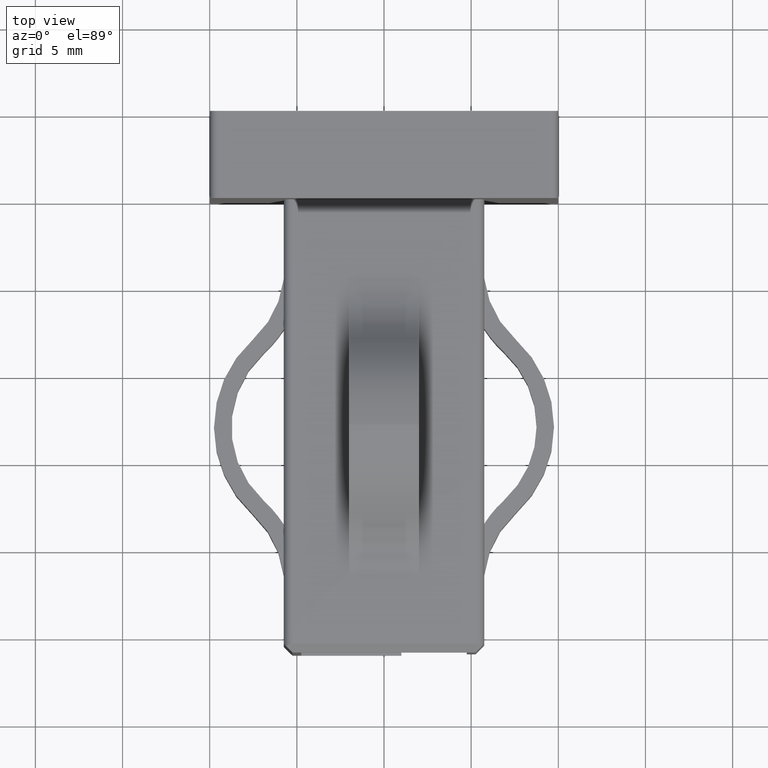
[diagram: clean part render]
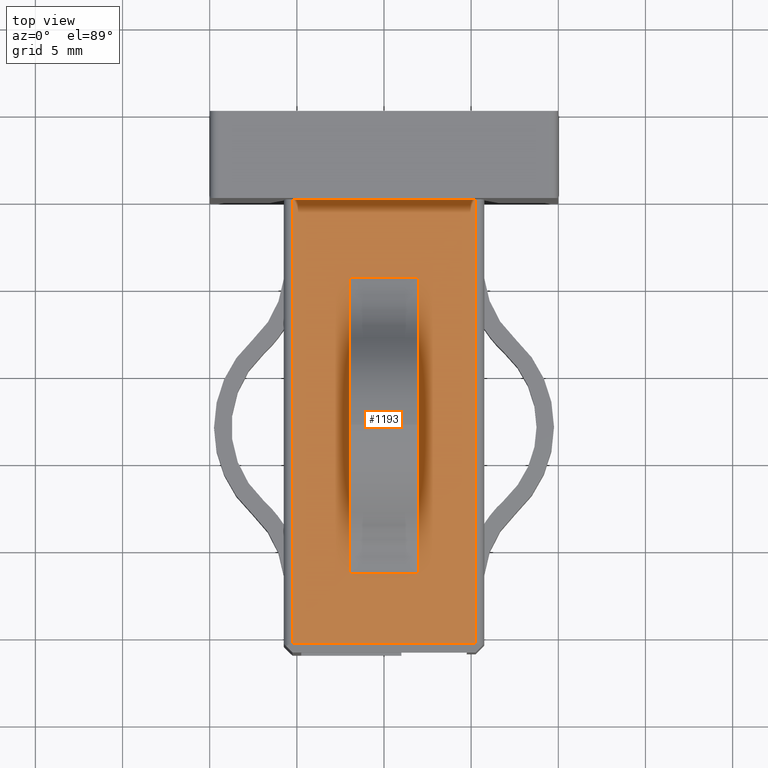
[diagram: same view with one face highlighted and labeled with its STEP entity id]
A machine part, top view. The second image highlights one B-rep face of the part: STEP entity #1193.
In plain terms, the highlighted planar face has unit normal (-0, 0, -1).
Its self-contained STEP definition (entity closure, byte-faithful):
#49 = VECTOR ( 'NONE', #3437, 1000.000000000000000 ) ;
#193 = EDGE_CURVE ( 'NONE', #12946, #11044, #8966, .T. ) ;
#226 = VECTOR ( 'NONE', #11888, 1000.000000000000000 ) ;
#623 = CARTESIAN_POINT ( 'NONE',  ( -5.249999999999997300, 0.0000000000000000000, 5.749999999999998200 ) ) ;
#688 = ORIENTED_EDGE ( 'NONE', *, *, #7820, .T. ) ;
#834 = CARTESIAN_POINT ( 'NONE',  ( 2.000000000000001300, -21.50000000000000000, 5.749999999999998200 ) ) ;
#884 = VERTEX_POINT ( 'NONE', #8758 ) ;
#908 = LINE ( 'NONE', #11282, #3712 ) ;
#1052 = EDGE_CURVE ( 'NONE', #884, #12946, #6565, .T. ) ;
#1077 = VECTOR ( 'NONE', #13759, 1000.000000000000000 ) ;
#1091 = FACE_OUTER_BOUND ( 'NONE', #7465, .T. ) ;
#1193 = ADVANCED_FACE ( 'NONE', ( #1091, #4053 ), #12163, .F. ) ;
#1411 = CARTESIAN_POINT ( 'NONE',  ( 5.749999999999998200, -26.00000000000000000, 5.749999999999998200 ) ) ;
#1448 = EDGE_CURVE ( 'NONE', #6039, #10098, #10132, .T. ) ;
#1787 = EDGE_CURVE ( 'NONE', #10483, #5271, #7063, .T. ) ;
#1790 = LINE ( 'NONE', #11941, #5112 ) ;
#2380 = ORIENTED_EDGE ( 'NONE', *, *, #8645, .T. ) ;
#2385 = ORIENTED_EDGE ( 'NONE', *, *, #1052, .F. ) ;
#2447 = DIRECTION ( 'NONE',  ( 3.697785493223492800E-032, -1.000000000000000000, 0.0000000000000000000 ) ) ;
#2983 = DIRECTION ( 'NONE',  ( -1.000000000000000000, -0.0000000000000000000, 1.927470528863118800E-016 ) ) ;
#3437 = DIRECTION ( 'NONE',  ( -1.000000000000000000, -0.0000000000000000000, 1.927470528863118800E-016 ) ) ;
#3591 = EDGE_CURVE ( 'NONE', #10098, #4608, #908, .T. ) ;
#3657 = CARTESIAN_POINT ( 'NONE',  ( -1.999999999999998700, -18.32438067502630500, 5.749999999999998200 ) ) ;
#3680 = ORIENTED_EDGE ( 'NONE', *, *, #1787, .T. ) ;
#3712 = VECTOR ( 'NONE', #13604, 1000.000000000000000 ) ;
#4010 = EDGE_CURVE ( 'NONE', #4608, #10527, #11138, .T. ) ;
#4053 = FACE_BOUND ( 'NONE', #11360, .T. ) ;
#4359 = VECTOR ( 'NONE', #6650, 1000.000000000000000 ) ;
#4499 = DIRECTION ( 'NONE',  ( -0.0000000000000000000, 0.0000000000000000000, -1.000000000000000000 ) ) ;
#4543 = EDGE_CURVE ( 'NONE', #8958, #13330, #7209, .T. ) ;
#4608 = VERTEX_POINT ( 'NONE', #834 ) ;
#4774 = ORIENTED_EDGE ( 'NONE', *, *, #4543, .T. ) ;
#5112 = VECTOR ( 'NONE', #7569, 1000.000000000000000 ) ;
#5169 = EDGE_CURVE ( 'NONE', #9126, #884, #11627, .T. ) ;
#5271 = VERTEX_POINT ( 'NONE', #10857 ) ;
#5406 = LINE ( 'NONE', #12565, #11174 ) ;
#5623 = DIRECTION ( 'NONE',  ( -1.000000000000000000, 0.0000000000000000000, 0.0000000000000000000 ) ) ;
#5660 = CARTESIAN_POINT ( 'NONE',  ( 2.000000000000001300, -18.32438067502630500, 5.749999999999998200 ) ) ;
#5931 = CARTESIAN_POINT ( 'NONE',  ( -5.249999999999997300, -25.50000000000000000, 5.749999999999998200 ) ) ;
#6039 = VERTEX_POINT ( 'NONE', #6259 ) ;
#6259 = CARTESIAN_POINT ( 'NONE',  ( 2.000000000000001300, -7.675619479102517000, 5.749999999999998200 ) ) ;
#6385 = CARTESIAN_POINT ( 'NONE',  ( 2.000000000000001300, -21.50000000000000000, 5.749999999999992000 ) ) ;
#6442 = CARTESIAN_POINT ( 'NONE',  ( -1.999999999999999100, -26.00000000000000000, 5.749999999999998200 ) ) ;
#6565 = LINE ( 'NONE', #7554, #226 ) ;
#6648 = CARTESIAN_POINT ( 'NONE',  ( 2.000000000000001300, -26.00000000000000000, 5.749999999999998200 ) ) ;
#6650 = DIRECTION ( 'NONE',  ( -0.0000000000000000000, -1.000000000000000000, -0.0000000000000000000 ) ) ;
#7063 = LINE ( 'NONE', #8431, #1077 ) ;
#7194 = VECTOR ( 'NONE', #2983, 1000.000000000000000 ) ;
#7209 = LINE ( 'NONE', #11173, #4359 ) ;
#7435 = CARTESIAN_POINT ( 'NONE',  ( -1.999999999999998700, -7.675619479102517000, 5.749999999999998200 ) ) ;
#7465 = EDGE_LOOP ( 'NONE', ( #2380, #4774, #11895, #3680 ) ) ;
#7554 = CARTESIAN_POINT ( 'NONE',  ( -1.999999999999999100, -26.00000000000000000, 5.749999999999998200 ) ) ;
#7569 = DIRECTION ( 'NONE',  ( 3.697785493223492800E-032, -1.000000000000000000, 0.0000000000000000000 ) ) ;
#7729 = ORIENTED_EDGE ( 'NONE', *, *, #193, .F. ) ;
#7820 = EDGE_CURVE ( 'NONE', #9126, #6039, #11752, .T. ) ;
#7942 = AXIS2_PLACEMENT_3D ( 'NONE', #1411, #4499, #5623 ) ;
#7977 = DIRECTION ( 'NONE',  ( 1.000000000000000000, 0.0000000000000000000, 0.0000000000000000000 ) ) ;
#8136 = VECTOR ( 'NONE', #12540, 1000.000000000000000 ) ;
#8213 = CARTESIAN_POINT ( 'NONE',  ( 2.000000000000001300, -4.500000000000000900, 5.749999999999998200 ) ) ;
#8431 = CARTESIAN_POINT ( 'NONE',  ( 5.249999999999998200, -26.00000000000000000, 5.749999999999998200 ) ) ;
#8645 = EDGE_CURVE ( 'NONE', #5271, #8958, #11392, .T. ) ;
#8758 = CARTESIAN_POINT ( 'NONE',  ( -1.999999999999999100, -4.500000000000000900, 5.749999999999998200 ) ) ;
#8958 = VERTEX_POINT ( 'NONE', #623 ) ;
#8966 = LINE ( 'NONE', #6442, #11189 ) ;
#9126 = VERTEX_POINT ( 'NONE', #8213 ) ;
#9226 = ORIENTED_EDGE ( 'NONE', *, *, #4010, .T. ) ;
#9296 = ORIENTED_EDGE ( 'NONE', *, *, #10599, .F. ) ;
#9877 = CARTESIAN_POINT ( 'NONE',  ( 2.000000000000001300, -26.00000000000000000, 5.749999999999998200 ) ) ;
#10036 = VECTOR ( 'NONE', #10846, 1000.000000000000000 ) ;
#10098 = VERTEX_POINT ( 'NONE', #5660 ) ;
#10132 = LINE ( 'NONE', #6648, #11665 ) ;
#10219 = ORIENTED_EDGE ( 'NONE', *, *, #5169, .F. ) ;
#10483 = VERTEX_POINT ( 'NONE', #10773 ) ;
#10527 = VERTEX_POINT ( 'NONE', #13944 ) ;
#10599 = EDGE_CURVE ( 'NONE', #11044, #10527, #1790, .T. ) ;
#10773 = CARTESIAN_POINT ( 'NONE',  ( 5.249999999999998200, -25.50000000000000000, 5.749999999999998200 ) ) ;
#10846 = DIRECTION ( 'NONE',  ( 3.697785493223492800E-032, -1.000000000000000000, 0.0000000000000000000 ) ) ;
#10857 = CARTESIAN_POINT ( 'NONE',  ( 5.249999999999998200, 0.0000000000000000000, 5.749999999999998200 ) ) ;
#11044 = VERTEX_POINT ( 'NONE', #3657 ) ;
#11138 = LINE ( 'NONE', #6385, #49 ) ;
#11173 = CARTESIAN_POINT ( 'NONE',  ( -5.249999999999997300, -26.00000000000000000, 5.749999999999998200 ) ) ;
#11174 = VECTOR ( 'NONE', #7977, 1000.000000000000000 ) ;
#11189 = VECTOR ( 'NONE', #12894, 1000.000000000000000 ) ;
#11282 = CARTESIAN_POINT ( 'NONE',  ( 2.000000000000001300, -26.00000000000000000, 5.749999999999998200 ) ) ;
#11360 = EDGE_LOOP ( 'NONE', ( #10219, #688, #13081, #13159, #9226, #9296, #7729, #2385 ) ) ;
#11392 = LINE ( 'NONE', #11438, #8136 ) ;
#11429 = CARTESIAN_POINT ( 'NONE',  ( 2.000000000000001300, -4.499999999999999100, 5.749999999999995600 ) ) ;
#11438 = CARTESIAN_POINT ( 'NONE',  ( 5.749999999999998200, 0.0000000000000000000, 5.749999999999998200 ) ) ;
#11572 = EDGE_CURVE ( 'NONE', #13330, #10483, #5406, .T. ) ;
#11627 = LINE ( 'NONE', #11429, #7194 ) ;
#11665 = VECTOR ( 'NONE', #2447, 1000.000000000000000 ) ;
#11752 = LINE ( 'NONE', #9877, #10036 ) ;
#11888 = DIRECTION ( 'NONE',  ( 3.697785493223492800E-032, -1.000000000000000000, 0.0000000000000000000 ) ) ;
#11895 = ORIENTED_EDGE ( 'NONE', *, *, #11572, .T. ) ;
#11941 = CARTESIAN_POINT ( 'NONE',  ( -1.999999999999999100, -26.00000000000000000, 5.749999999999998200 ) ) ;
#12163 = PLANE ( 'NONE',  #7942 ) ;
#12540 = DIRECTION ( 'NONE',  ( -1.000000000000000000, 0.0000000000000000000, 0.0000000000000000000 ) ) ;
#12565 = CARTESIAN_POINT ( 'NONE',  ( 5.749999999999998200, -25.50000000000000000, 5.749999999999998200 ) ) ;
#12894 = DIRECTION ( 'NONE',  ( 3.697785493223492800E-032, -1.000000000000000000, 0.0000000000000000000 ) ) ;
#12946 = VERTEX_POINT ( 'NONE', #7435 ) ;
#13081 = ORIENTED_EDGE ( 'NONE', *, *, #1448, .T. ) ;
#13159 = ORIENTED_EDGE ( 'NONE', *, *, #3591, .T. ) ;
#13330 = VERTEX_POINT ( 'NONE', #5931 ) ;
#13604 = DIRECTION ( 'NONE',  ( 3.697785493223492800E-032, -1.000000000000000000, 0.0000000000000000000 ) ) ;
#13759 = DIRECTION ( 'NONE',  ( 0.0000000000000000000, 1.000000000000000000, 0.0000000000000000000 ) ) ;
#13944 = CARTESIAN_POINT ( 'NONE',  ( -1.999999999999998700, -21.50000000000000000, 5.749999999999992900 ) ) ;